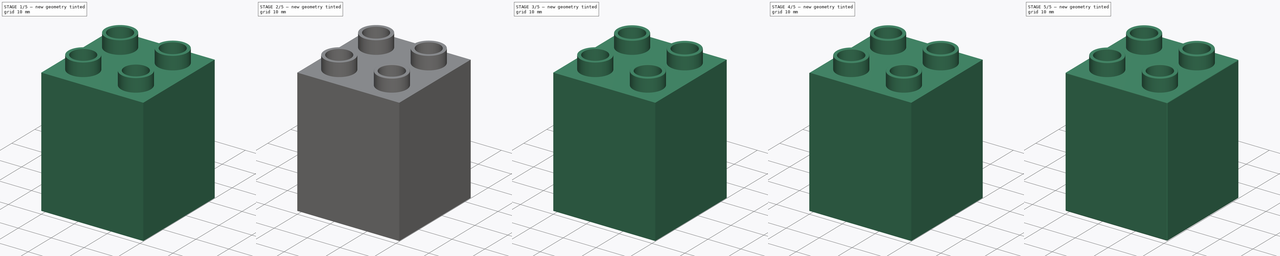
[diagram: build sequence overview — one tinted view per stage of 5, left to right]
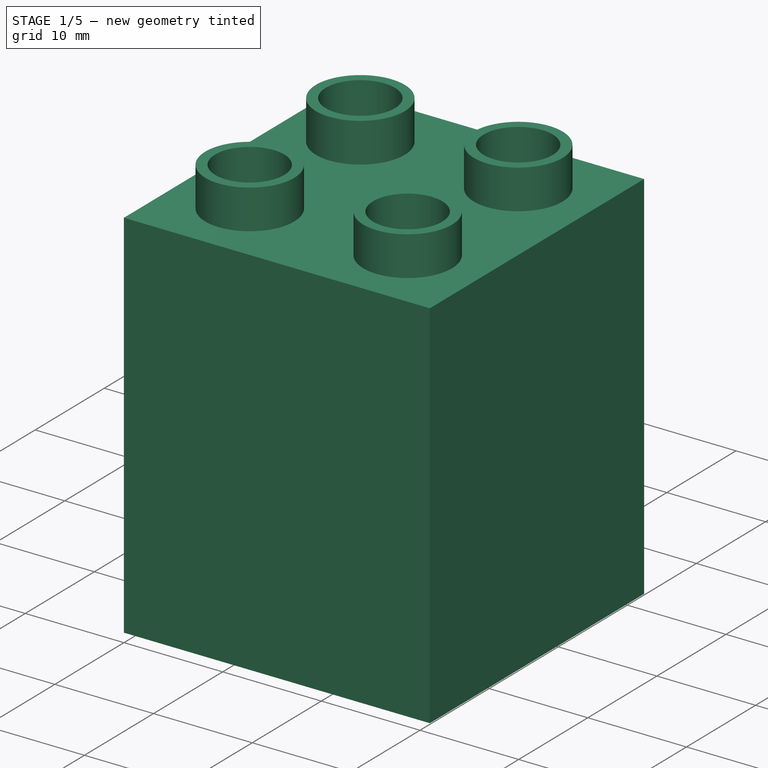
[diagram: stage 1 of 5 — iso view after this stage's code; geometry added in this stage tinted green]
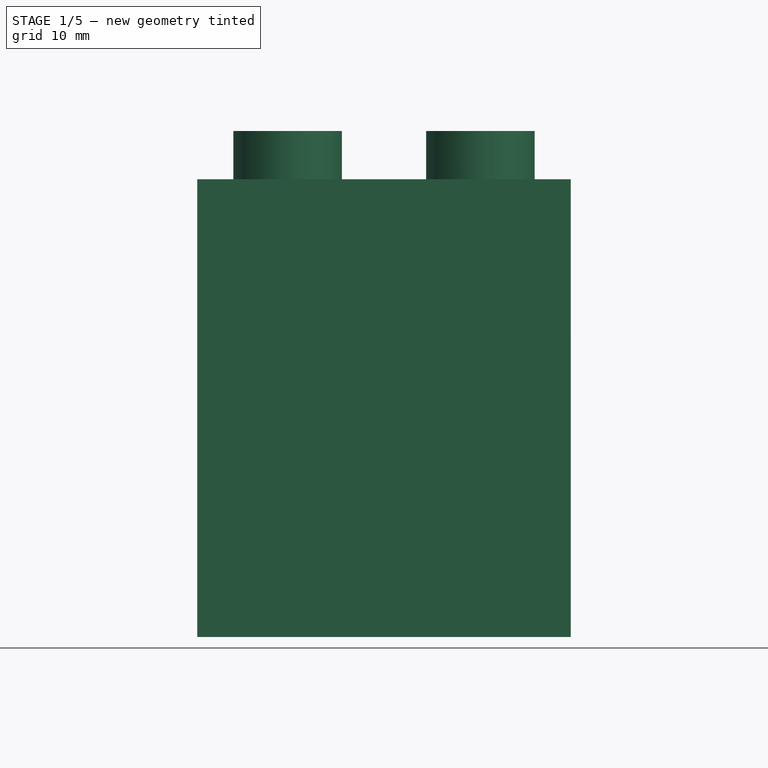
[diagram: stage 1 of 5 — front view after this stage's code; geometry added in this stage tinted green]
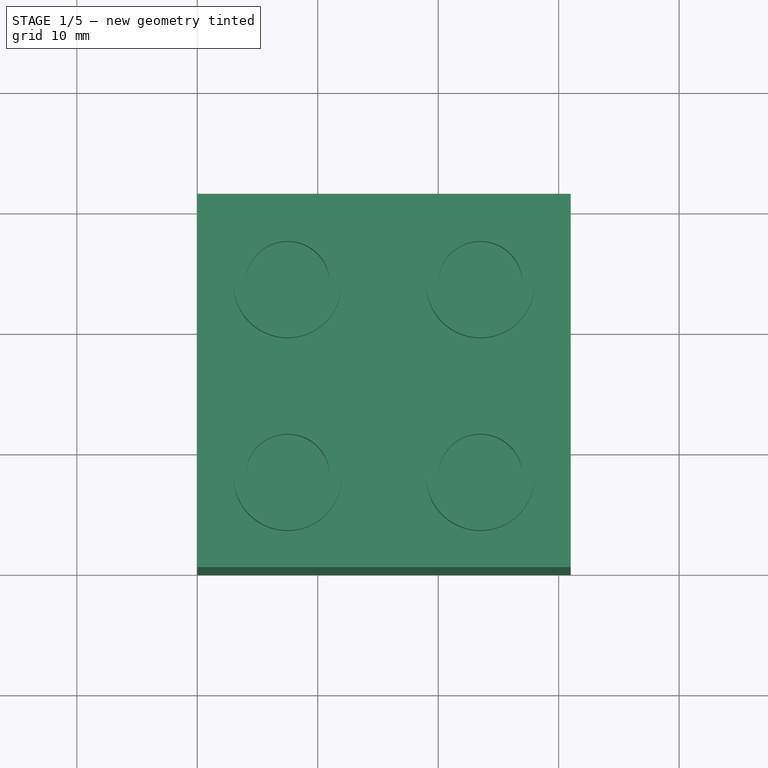
[diagram: stage 1 of 5 — top view after this stage's code; geometry added in this stage tinted green]
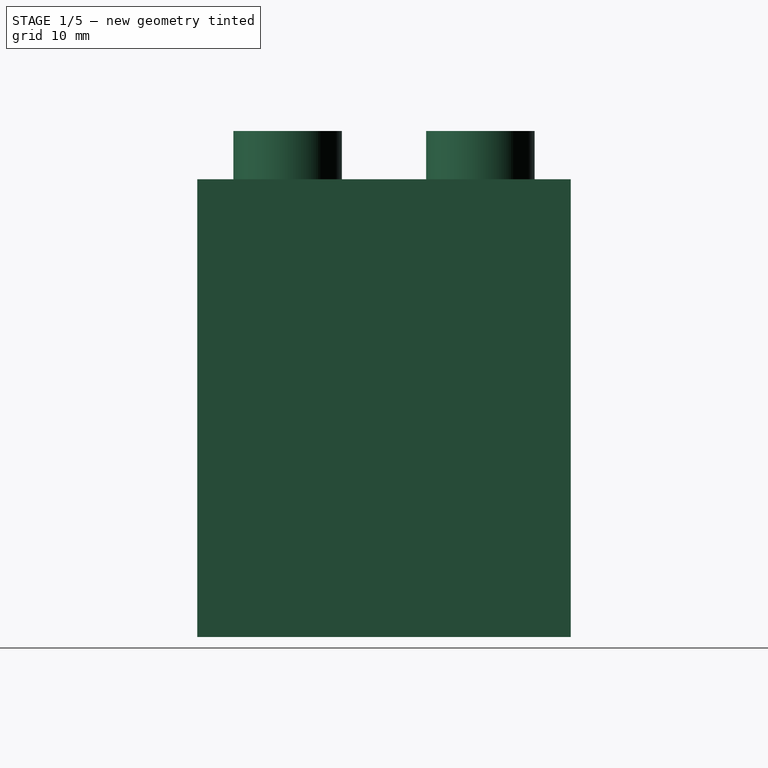
[diagram: stage 1 of 5 — right view after this stage's code; geometry added in this stage tinted green]
FCSTD DOCUMENT  (FreeCAD 0.18.4R)
Label: lego_block
License: All rights reserved
LicenseURL: http://en.wikipedia.org/wiki/All_rights_reserved
objects: PartDesign::Fillet×13, Sketcher::SketchObject×3, PartDesign::Pocket×2, Part::Box×1, PartDesign::FeatureBase×1, PartDesign::Pad×1, PartDesign::Body×1
note: 25 computed .brp shape members not serialized (recipe doc carries the construction recipe); baked Part::Feature solids carry a one-line shape summary decoded from their .brp

FEATURE [Part::Box] Box  label="Cube"
  AttacherType = Attacher::AttachEngine3D
  Height = 38
  Length = 31
  Width = 31
FEATURE [Sketcher::SketchObject] Sketch
  MapMode = 5
  Placement = pos=(0,0,38) rot=(0,0,1;0rad)
  Support = -> [Box]
  sketch-geometry (11):
    g0: Circle CenterX=7.5 CenterY=7.5 CenterZ=0 NormalX=0 NormalY=0 NormalZ=1 AngleXU=0 Radius=4.5
    g1: Circle CenterX=7.5 CenterY=7.5 CenterZ=0 NormalX=0 NormalY=0 NormalZ=1 AngleXU=0 Radius=3.5
    g2: Circle CenterX=7.5 CenterY=23.5 CenterZ=0 NormalX=0 NormalY=0 NormalZ=1 AngleXU=0 Radius=4.5
    g3: Circle CenterX=7.5 CenterY=23.5 CenterZ=0 NormalX=0 NormalY=0 NormalZ=1 AngleXU=0 Radius=3.5
    g4: LineSegment [constr] StartX=7.5 StartY=7.5 StartZ=0 EndX=7.5 EndY=23.5 EndZ=0
    g5: Circle CenterX=23.5 CenterY=7.5 CenterZ=0 NormalX=0 NormalY=0 NormalZ=1 AngleXU=0 Radius=4.5
    g6: Circle CenterX=23.5 CenterY=7.5 CenterZ=0 NormalX=0 NormalY=0 NormalZ=1 AngleXU=0 Radius=3.5
    g7: LineSegment [constr] StartX=7.5 StartY=7.5 StartZ=0 EndX=23.5 EndY=7.5 EndZ=0
    g8: Circle CenterX=23.5 CenterY=23.5 CenterZ=0 NormalX=0 NormalY=0 NormalZ=1 AngleXU=0 Radius=4.5
    g9: Circle CenterX=23.5 CenterY=23.5 CenterZ=0 NormalX=0 NormalY=0 NormalZ=1 AngleXU=0 Radius=3.5
    g10: LineSegment [constr] StartX=23.5 StartY=7.5 StartZ=0 EndX=23.5 EndY=23.5 EndZ=0
  constraints (26):
    c: DistanceX(g-1,g0) = 7.5
    c: DistanceY(g-1,g0) = 7.5
    c: Radius(g0) = 4.5
    c: Coincident(g1,g0)
    c: Radius(g1) = 3.5
    c: Radius(g2) = 4.5
    c: Coincident(g3,g2)
    c: Radius(g3) = 3.5
    c: Coincident(g0,g4)
    c: Coincident(g2,g4)
    c: Distance(g4) = 16
    c: Angle(g4) = 1.5708
    c: Radius(g5) = 4.5
    c: Coincident(g6,g5)
    c: Radius(g6) = 3.5
    c: Coincident(g0,g7)
    c: Coincident(g5,g7)
    c: Equal(g7,g4)
    c: Perpendicular(g7,g4)
    c: Radius(g8) = 4.5
    c: Coincident(g9,g8)
    c: Radius(g9) = 3.5
    c: Coincident(g5,g10)
    c: Coincident(g8,g10)
    c: Equal(g4,g10)
    c: Parallel(g10,g4)
FEATURE [PartDesign::FeatureBase] BaseFeature
  BaseFeature = -> Box
FEATURE [PartDesign::Pad] Pad
  BaseFeature = -> BaseFeature
  Length = 4
  Length2 = 100
  Profile = -> Sketch
  Type = 0
FEATURE [Sketcher::SketchObject] Sketch001
  ExternalGeometry = -> [Pad]
  MapMode = 5
  Placement = pos=(0,0,0) rot=(1,0,0;3.14159rad)
  Support = -> [Pad]
  sketch-geometry (39):
    g0: LineSegment StartX=1 StartY=-1 StartZ=0 EndX=7 EndY=-1 EndZ=0
    g1: LineSegment StartX=30 StartY=-1 StartZ=0 EndX=30 EndY=-7 EndZ=0
    g2: LineSegment StartX=30 StartY=-30 StartZ=0 EndX=24 EndY=-30 EndZ=0
    g3: LineSegment StartX=1 StartY=-30 StartZ=0 EndX=1 EndY=-24 EndZ=0
    g4: LineSegment StartX=7 StartY=-1 StartZ=0 EndX=7 EndY=-2.5 EndZ=0
    g5: LineSegment StartX=7 StartY=-2.5 StartZ=0 EndX=8 EndY=-2.5 EndZ=0
    g6: LineSegment StartX=8 StartY=-2.5 StartZ=0 EndX=8 EndY=-1 EndZ=0
    g7: LineSegment StartX=8 StartY=-1 StartZ=0 EndX=23 EndY=-1 EndZ=0
    g8: LineSegment StartX=23 StartY=-1 StartZ=0 EndX=23 EndY=-2.5 EndZ=0
    g9: LineSegment StartX=24 StartY=-2.5 StartZ=0 EndX=23 EndY=-2.5 EndZ=0
    g10: LineSegment StartX=24 StartY=-2.5 StartZ=0 EndX=24 EndY=-1 EndZ=0
    g11: LineSegment StartX=24 StartY=-1 StartZ=0 EndX=30 EndY=-1 EndZ=0
    g12: LineSegment StartX=1 StartY=-7 StartZ=0 EndX=2.5 EndY=-7 EndZ=0
    g13: LineSegment StartX=2.5 StartY=-7 StartZ=0 EndX=2.5 EndY=-8 EndZ=0
    g14: LineSegment StartX=2.5 StartY=-8 StartZ=0 EndX=1 EndY=-8 EndZ=0
    g15: LineSegment StartX=1 StartY=-7 StartZ=0 EndX=1 EndY=-1 EndZ=0
    g16: LineSegment StartX=1 StartY=-24 StartZ=0 EndX=2.5 EndY=-24 EndZ=0
    g17: LineSegment StartX=2.5 StartY=-24 StartZ=0 EndX=2.5 EndY=-23 EndZ=0
    g18: LineSegment StartX=2.5 StartY=-23 StartZ=0 EndX=1 EndY=-23 EndZ=0
    g19: LineSegment StartX=30 StartY=-24 StartZ=0 EndX=28.5 EndY=-24 EndZ=0
    g20: LineSegment StartX=28.5 StartY=-24 StartZ=0 EndX=28.5 EndY=-23 EndZ=0
    g21: LineSegment StartX=28.5 StartY=-23 StartZ=0 EndX=30 EndY=-23 EndZ=0
    g22: LineSegment StartX=28.5 StartY=-8 StartZ=0 EndX=30 EndY=-8 EndZ=0
    g23: LineSegment StartX=28.5 StartY=-7 StartZ=0 EndX=28.5 EndY=-8 EndZ=0
    g24: LineSegment StartX=30 StartY=-7 StartZ=0 EndX=28.5 EndY=-7 EndZ=0
    g25: LineSegment StartX=7 StartY=-30 StartZ=0 EndX=7 EndY=-28.5 EndZ=0
    g26: LineSegment StartX=8 StartY=-28.5 StartZ=0 EndX=8 EndY=-30 EndZ=0
    g27: LineSegment StartX=7 StartY=-28.5 StartZ=0 EndX=8 EndY=-28.5 EndZ=0
    g28: LineSegment StartX=23 StartY=-30 StartZ=0 EndX=23 EndY=-28.5 EndZ=0
    g29: LineSegment StartX=24 StartY=-28.5 StartZ=0 EndX=24 EndY=-30 EndZ=0
    g30: LineSegment StartX=24 StartY=-28.5 StartZ=0 EndX=23 EndY=-28.5 EndZ=0
    g31: LineSegment StartX=1 StartY=-23 StartZ=0 EndX=1 EndY=-8 EndZ=0
    g32: LineSegment StartX=7 StartY=-30 StartZ=0 EndX=1 EndY=-30 EndZ=0
    g33: LineSegment StartX=23 StartY=-30 StartZ=0 EndX=8 EndY=-30 EndZ=0
    g34: LineSegment StartX=30 StartY=-24 StartZ=0 EndX=30 EndY=-30 EndZ=0
    g35: LineSegment StartX=30 StartY=-8 StartZ=0 EndX=30 EndY=-23 EndZ=0
    g36: LineSegment [constr] StartX=1 StartY=-15.5 StartZ=0 EndX=30 EndY=-15.5 EndZ=0
    g37: GeomPoint X=15.5 Y=-15.5 Z=0
    g38: Circle CenterX=15.5 CenterY=-15.5 CenterZ=0 NormalX=0 NormalY=0 NormalZ=1 AngleXU=0 Radius=6.5
  constraints (108):
    c: Coincident(g11,g1)
    c: Coincident(g34,g2)
    c: Coincident(g32,g3)
    c: Coincident(g15,g0)
    c: Horizontal(g0)
    c: Horizontal(g2)
    c: Vertical(g1)
    c: Vertical(g3)
    c: DistanceY(g0,g-1) = 1
    c: DistanceX(g-1,g0) = 1
    c: DistanceX(g11,g-3) = 1
    c: DistanceY(g-4,g32) = 1
    c: Coincident(g4,g5)
    c: Coincident(g5,g6)
    c: Coincident(g0,g4)
    c: Coincident(g7,g6)
    c: Tangent(g0,g7)
    c: DistanceY(g4,g0) = 1.5
    c: DistanceY(g5,g6) = 1.5
    c: DistanceX(g0,g6) = 1
    c: DistanceX(g4,g5) = 1
    c: Angle(g0,g4) = 1.5708
    c: DistanceX(g0,g0) = 6
    c: Coincident(g8,g9)
    c: Coincident(g10,g9)
    c: Coincident(g7,g8)
    c: Coincident(g11,g10)
    c: Tangent(g7,g11)
    c: DistanceY(g8,g7) = 1.5
    c: DistanceY(g9,g10) = 1.5
    c: DistanceX(g8,g9) = 1
    c: DistanceX(g7,g10) = 1
    c: Angle(g7,g8) = 1.5708
    c: DistanceX(g10,g1) = 6
    c: Coincident(g12,g13)
    c: Coincident(g13,g14)
    c: Tangent(g3,g15)
    c: Coincident(g12,g15)
    c: Coincident(g14,g31)
    c: DistanceY(g31,g12) = 1
    c: DistanceY(g13,g12) = 1
    c: DistanceX(g31,g13) = 1.5
    c: DistanceX(g12,g12) = 1.5
    c: Angle(g3,g14) = 1.5708
    c: DistanceY(g12,g0) = 6
    c: Coincident(g16,g17)
    c: Coincident(g17,g18)
    c: Coincident(g19,g20)
    c: Coincident(g20,g21)
    c: Coincident(g24,g23)
    c: Coincident(g23,g22)
    c: Coincident(g25,g27)
    c: Coincident(g27,g26)
    c: Coincident(g28,g30)
    c: Coincident(g29,g30)
    c: Coincident(g3,g16)
    c: Coincident(g31,g18)
    c: Tangent(g3,g31)
    c: DistanceY(g3,g18) = 1
    c: DistanceY(g16,g17) = 1
    c: DistanceX(g18,g17) = 1.5
    c: DistanceX(g3,g16) = 1.5
    c: Angle(g3,g16) = 1.5708
    c: DistanceY(g32,g3) = 6
    c: Coincident(g33,g26)
    c: Coincident(g32,g25)
    c: Tangent(g2,g32)
    c: DistanceX(g25,g33) = 1
    c: DistanceX(g25,g26) = 1
    c: DistanceY(g25,g25) = 1.5
    c: DistanceY(g33,g26) = 1.5
    c: Angle(g2,g26) = 1.5708
    c: DistanceX(g3,g25) = 6
    c: Coincident(g2,g29)
    c: Coincident(g33,g28)
    c: Tangent(g2,g33)
    c: DistanceX(g28,g2) = 1
    c: DistanceX(g28,g29) = 1
    c: DistanceY(g28,g28) = 1.5
    c: DistanceY(g2,g29) = 1.5
    c: Angle(g2,g29) = 1.5708
    c: DistanceX(g2,g34) = 6
    c: Coincident(g35,g21)
    c: Coincident(g34,g19)
    c: Tangent(g1,g34)
    c: DistanceY(g19,g35) = 1
    c: DistanceY(g19,g20) = 1
    c: DistanceX(g20,g35) = 1.5
    c: DistanceX(g19,g19) = 1.5
    c: Angle(g1,g21) = 1.5708
    c: DistanceY(g2,g19) = 6
    c: Coincident(g1,g24)
    c: Coincident(g35,g22)
    c: Tangent(g1,g35)
    c: DistanceY(g22,g1) = 1
    c: DistanceY(g22,g23) = 1
    c: DistanceX(g22,g22) = 1.5
    c: DistanceX(g23,g1) = 1.5
    c: Angle(g22,g35) = 1.5708
    c: DistanceY(g1,g1) = 6
    c: PointOnObject(g36,g31)
    c: PointOnObject(g36,g35)
    c: DistanceY(g36,g-1) = 15.5
    c: DistanceY(g36,g-3) = 15.5
    c: PointOnObject(g37,g36)
    c: DistanceX(g-1,g37) = 15.5
    c: Coincident(g38,g37)
    c: Radius(g38) = 6.5
FEATURE [PartDesign::Pocket] Pocket
  BaseFeature = -> Pad
  Length = 35
  Length2 = 100
  Profile = -> Sketch001
  Type = 0
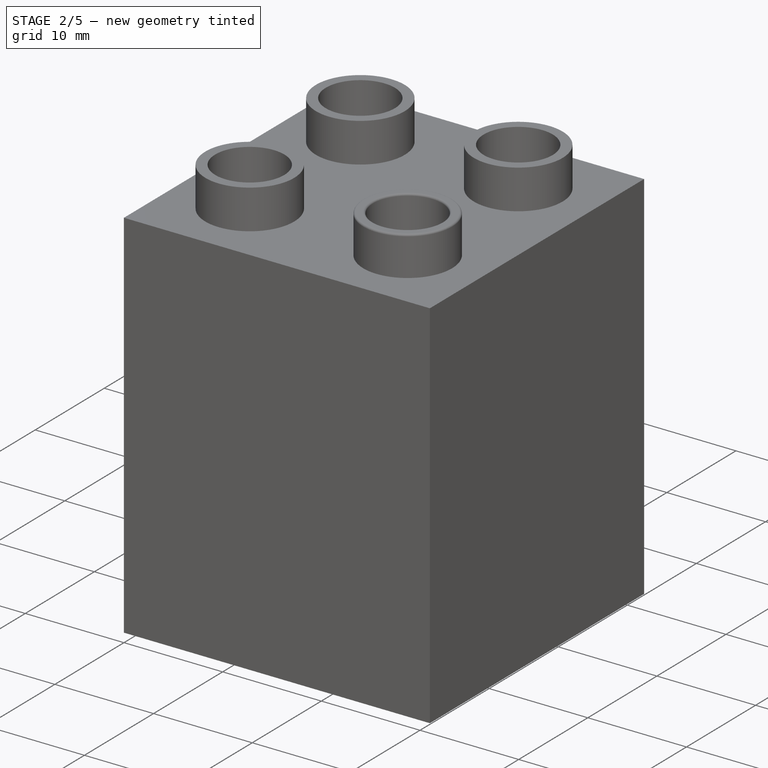
[diagram: stage 2 of 5 — iso view after this stage's code; geometry added in this stage tinted green]
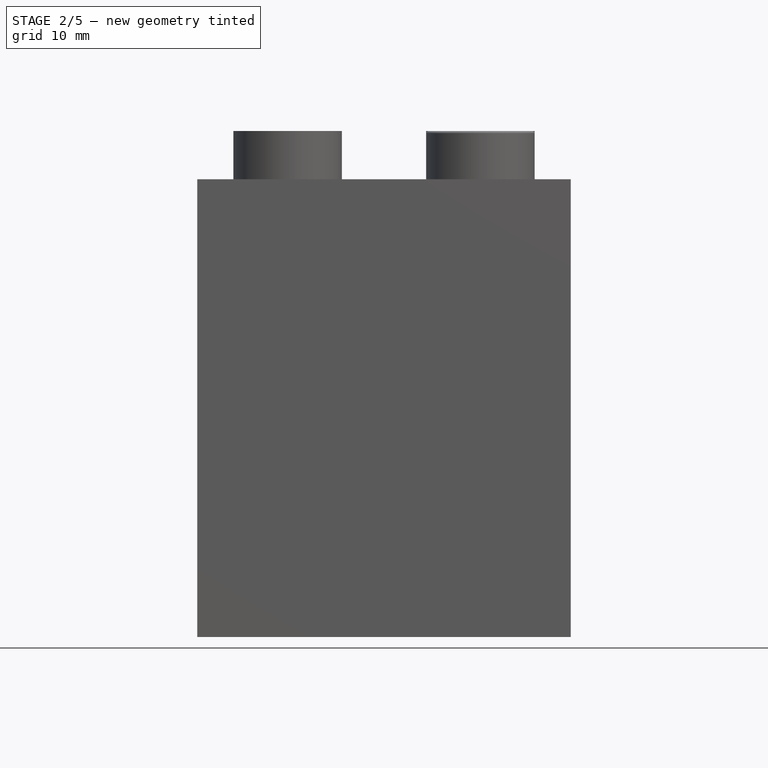
[diagram: stage 2 of 5 — front view after this stage's code; geometry added in this stage tinted green]
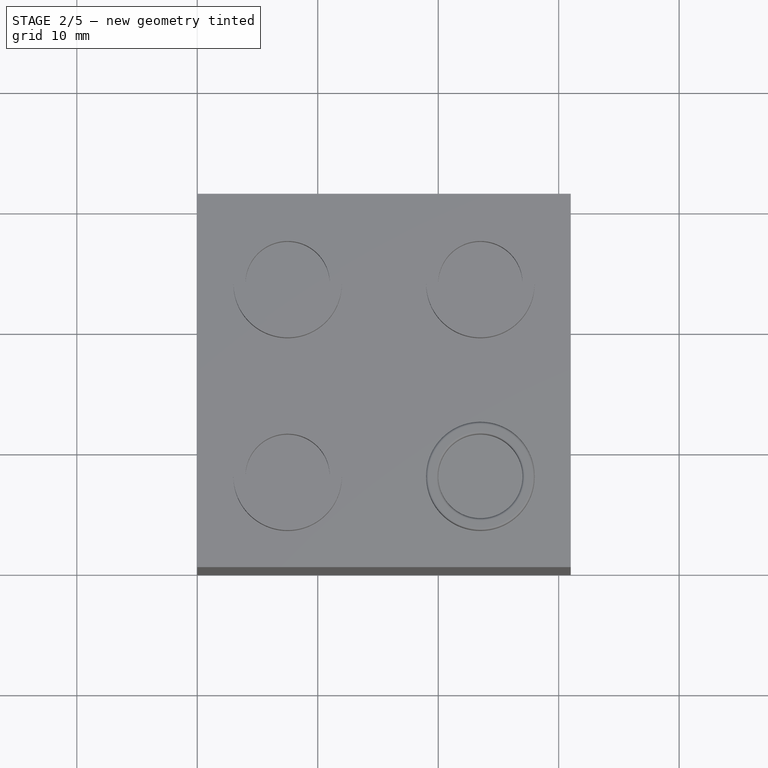
[diagram: stage 2 of 5 — top view after this stage's code; geometry added in this stage tinted green]
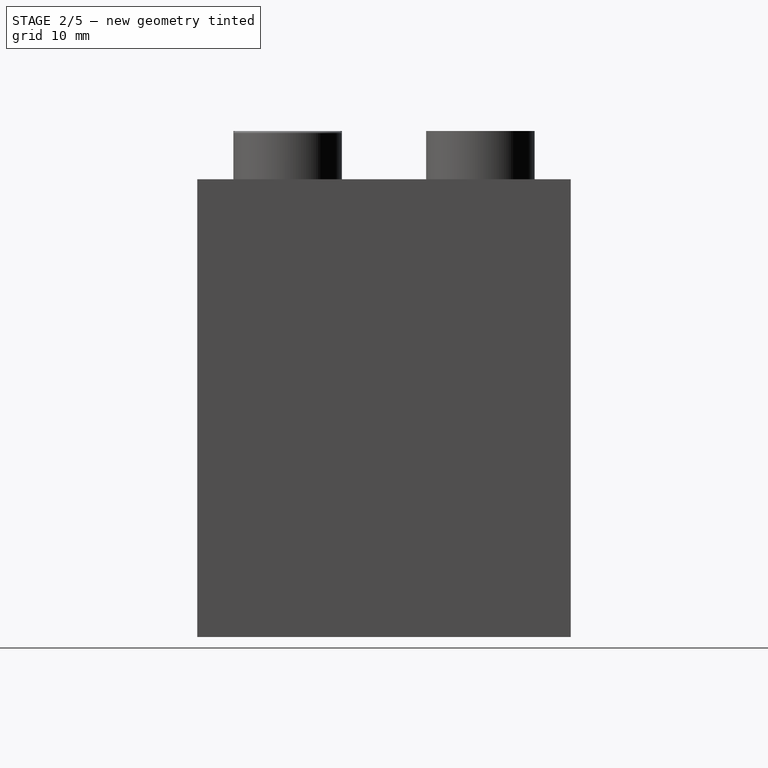
[diagram: stage 2 of 5 — right view after this stage's code; geometry added in this stage tinted green]
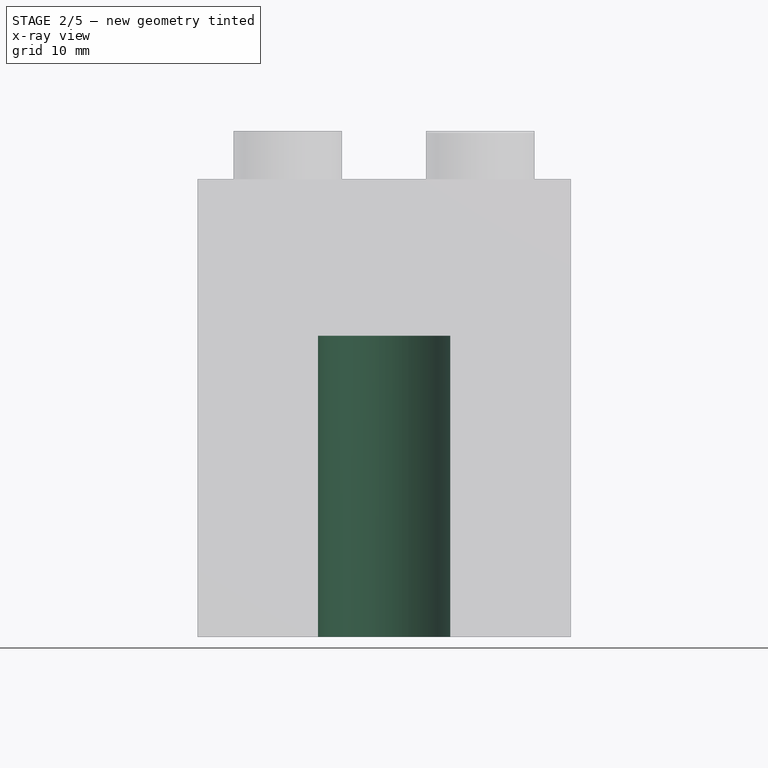
[diagram: stage 2 of 5 — x-ray composite at the front view; earlier geometry ghosted, this stage's added geometry solid]
FEATURE [Sketcher::SketchObject] Sketch002
  MapMode = 5
  Placement = pos=(0,0,0) rot=(1,0,0;3.14159rad)
  Support = -> [Pocket]
  sketch-geometry (2):
    g0: GeomPoint X=15.5 Y=-15.5 Z=0
    g1: Circle CenterX=15.5 CenterY=-15.5 CenterZ=0 NormalX=0 NormalY=0 NormalZ=1 AngleXU=0 Radius=5.5
  constraints (4):
    c: DistanceX(g-1,g0) = 15.5
    c: DistanceY(g0,g-1) = 15.5
    c: Coincident(g0,g1)
    c: Radius(g1) = 5.5
FEATURE [PartDesign::Pocket] Pocket001
  BaseFeature = -> Pocket
  Length = 25
  Length2 = 100
  Profile = -> Sketch002
  Type = 0
FEATURE [PartDesign::Fillet] Fillet
  Base = -> Pocket001 [Edge58]
  BaseFeature = -> Pocket001
  Radius = 0.2
FEATURE [PartDesign::Fillet] Fillet001
  Base = -> Fillet [Edge13]
  BaseFeature = -> Fillet
  Radius = 0.2
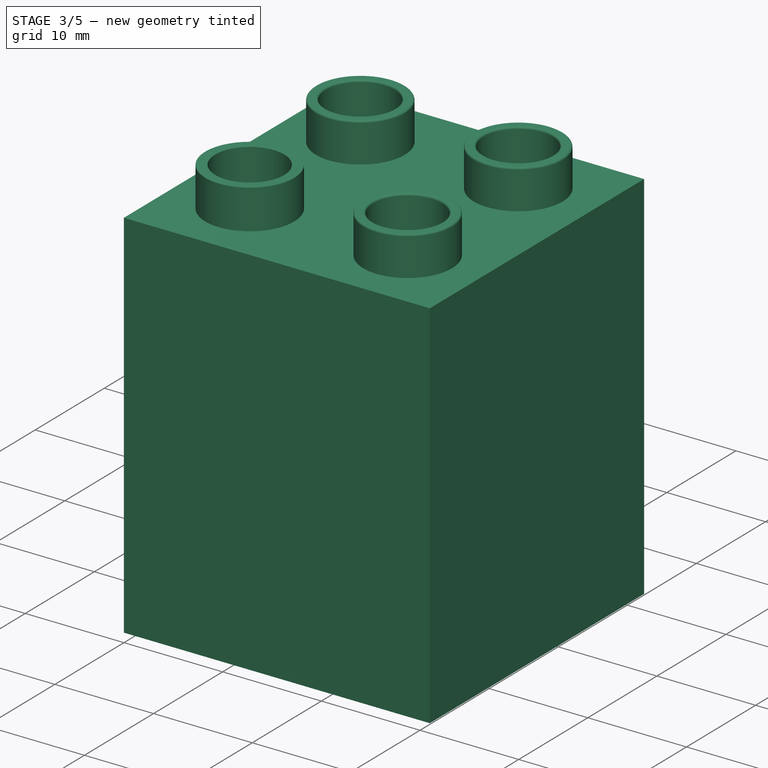
[diagram: stage 3 of 5 — iso view after this stage's code; geometry added in this stage tinted green]
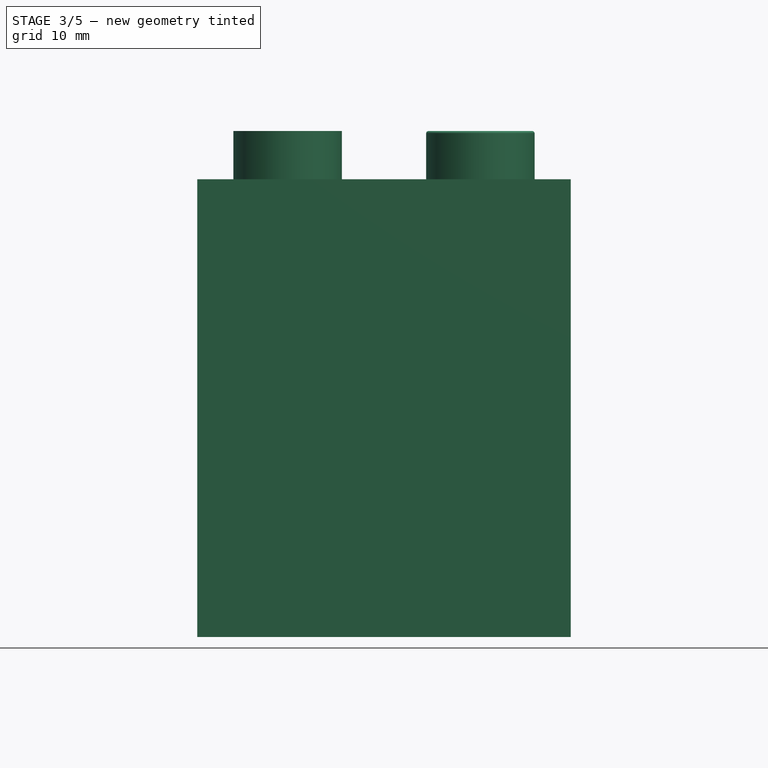
[diagram: stage 3 of 5 — front view after this stage's code; geometry added in this stage tinted green]
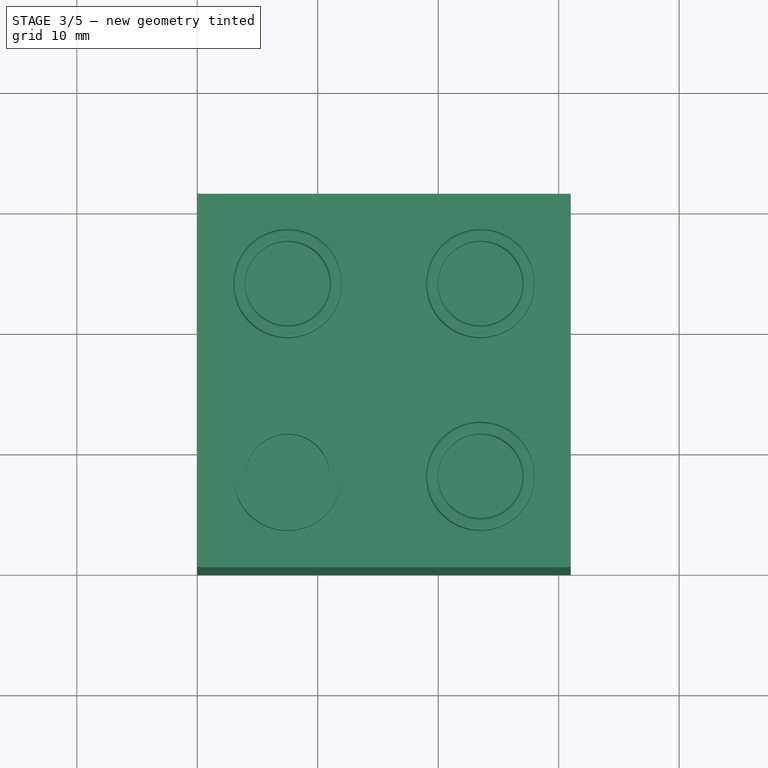
[diagram: stage 3 of 5 — top view after this stage's code; geometry added in this stage tinted green]
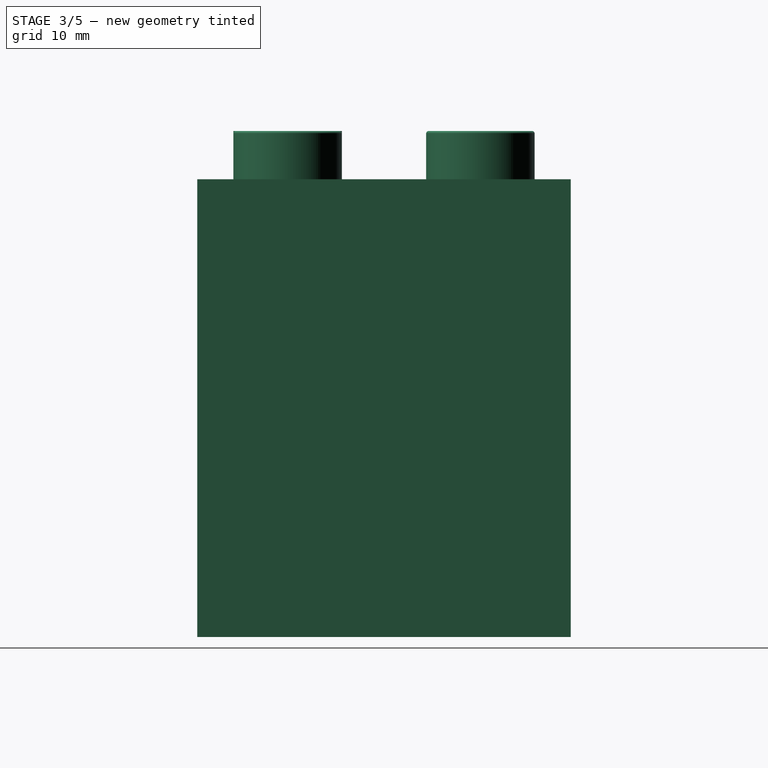
[diagram: stage 3 of 5 — right view after this stage's code; geometry added in this stage tinted green]
FEATURE [PartDesign::Fillet] Fillet002
  Base = -> Fillet001 [Edge29]
  BaseFeature = -> Fillet001
  Radius = 0.2
FEATURE [PartDesign::Fillet] Fillet003
  Base = -> Fillet002 [Edge13]
  BaseFeature = -> Fillet002
  Radius = 0.2
FEATURE [PartDesign::Fillet] Fillet004
  Base = -> Fillet003 [Edge27]
  BaseFeature = -> Fillet003
  Radius = 0.2
FEATURE [PartDesign::Fillet] Fillet005
  Base = -> Fillet004 [Edge13]
  BaseFeature = -> Fillet004
  Radius = 0.2
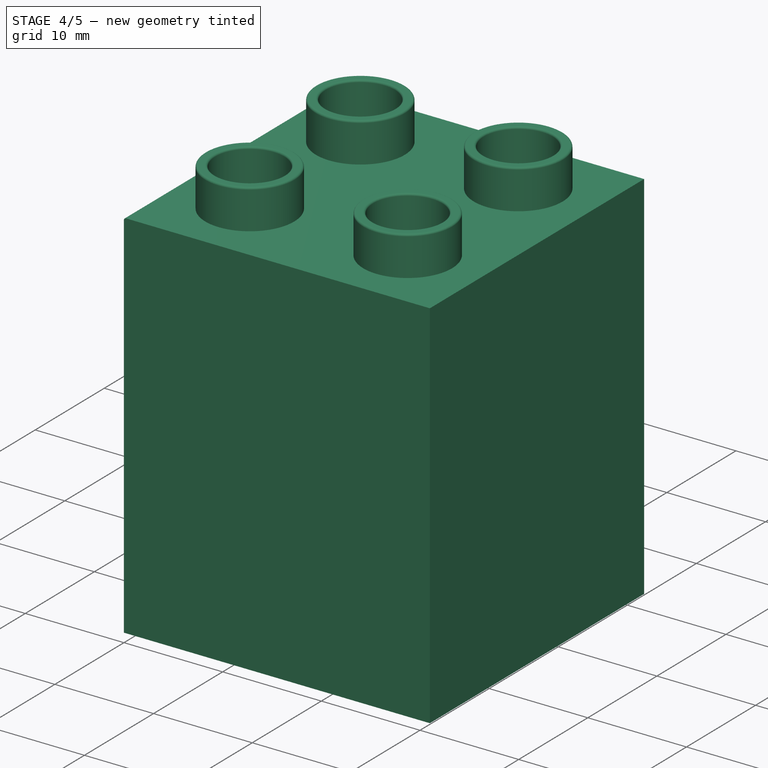
[diagram: stage 4 of 5 — iso view after this stage's code; geometry added in this stage tinted green]
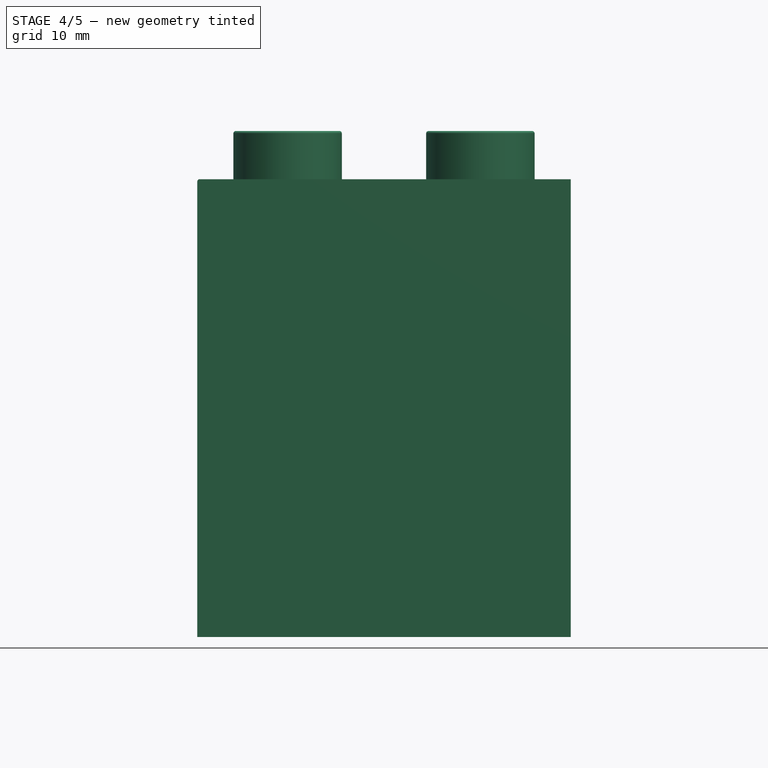
[diagram: stage 4 of 5 — front view after this stage's code; geometry added in this stage tinted green]
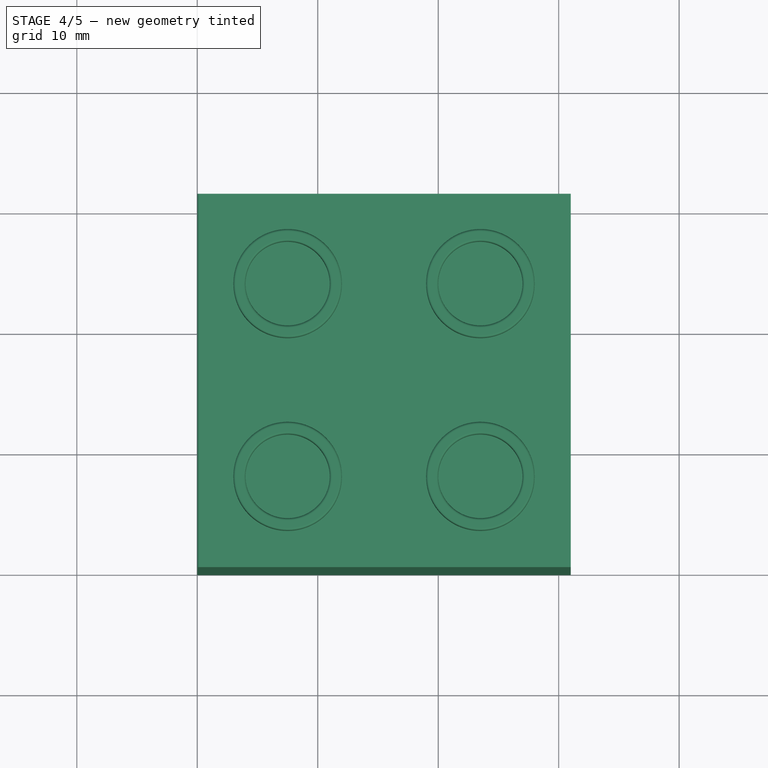
[diagram: stage 4 of 5 — top view after this stage's code; geometry added in this stage tinted green]
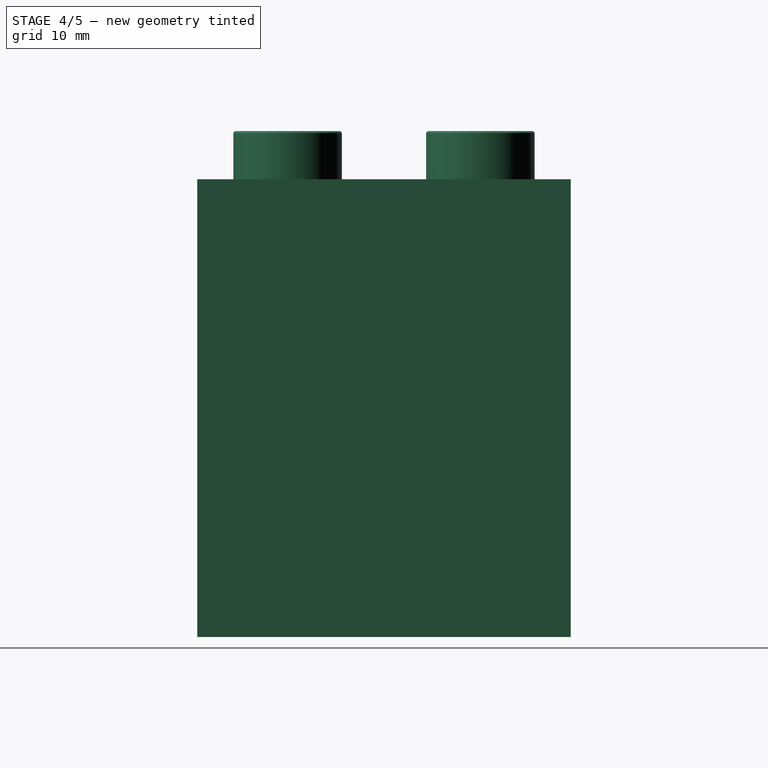
[diagram: stage 4 of 5 — right view after this stage's code; geometry added in this stage tinted green]
FEATURE [PartDesign::Fillet] Fillet006
  Base = -> Fillet005 [Edge72]
  BaseFeature = -> Fillet005
  Radius = 0.2
FEATURE [PartDesign::Fillet] Fillet007
  Base = -> Fillet006 [Edge2]
  BaseFeature = -> Fillet006
  Radius = 0.2
FEATURE [PartDesign::Fillet] Fillet008
  Base = -> Fillet007 [Edge11]
  BaseFeature = -> Fillet007
  Radius = 0.2
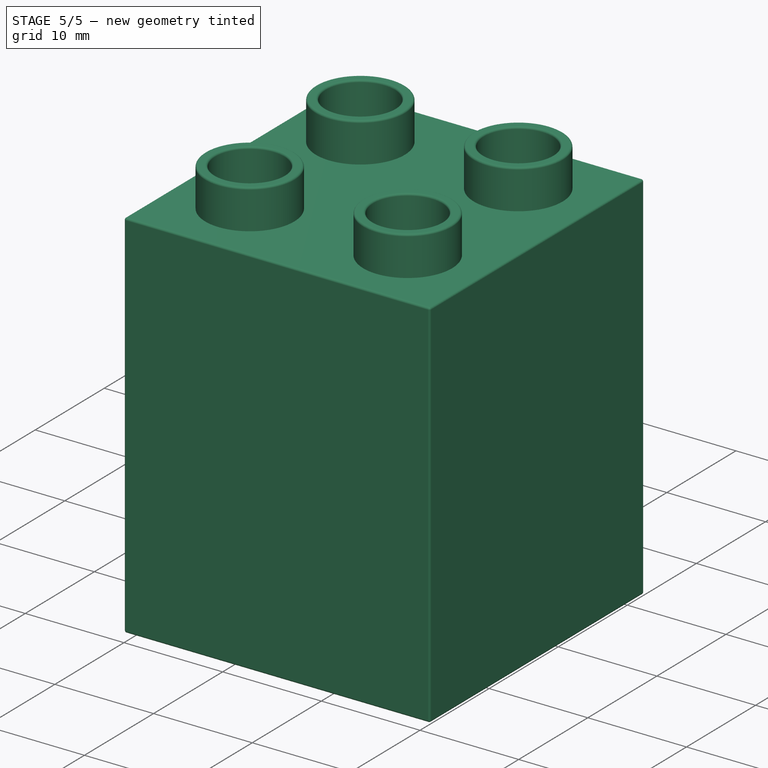
[diagram: stage 5 of 5 — iso view after this stage's code; geometry added in this stage tinted green]
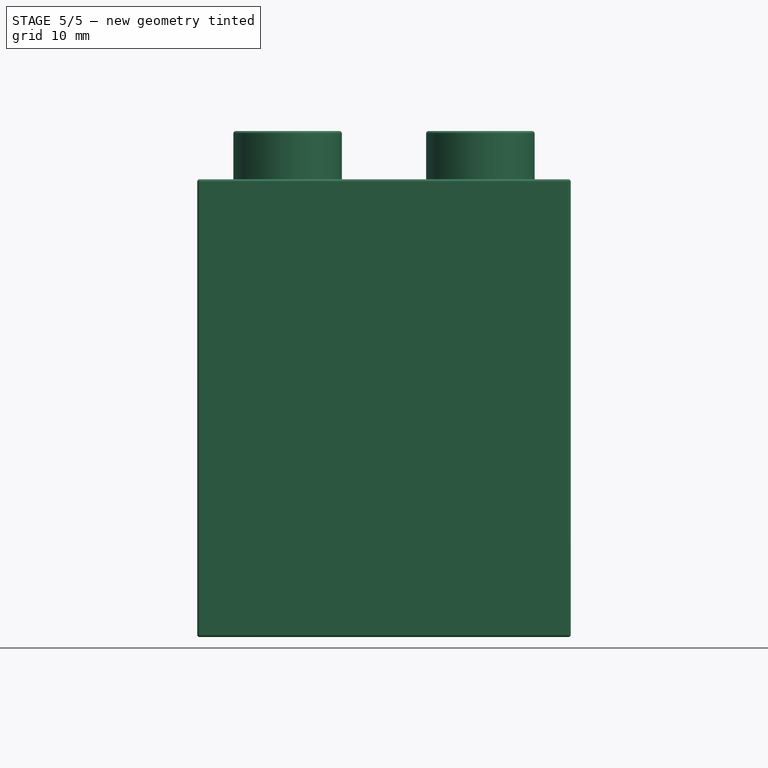
[diagram: stage 5 of 5 — front view after this stage's code; geometry added in this stage tinted green]
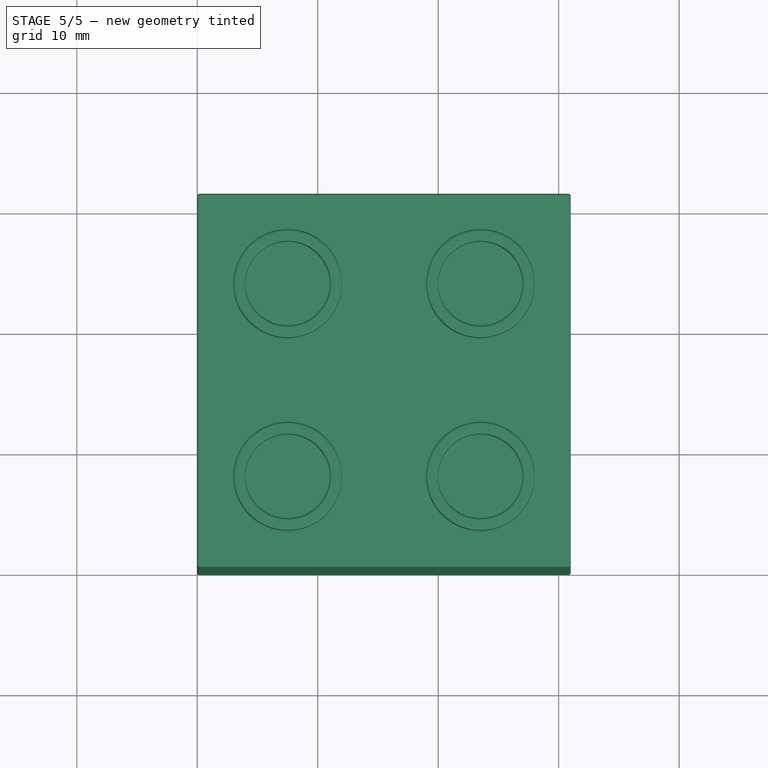
[diagram: stage 5 of 5 — top view after this stage's code; geometry added in this stage tinted green]
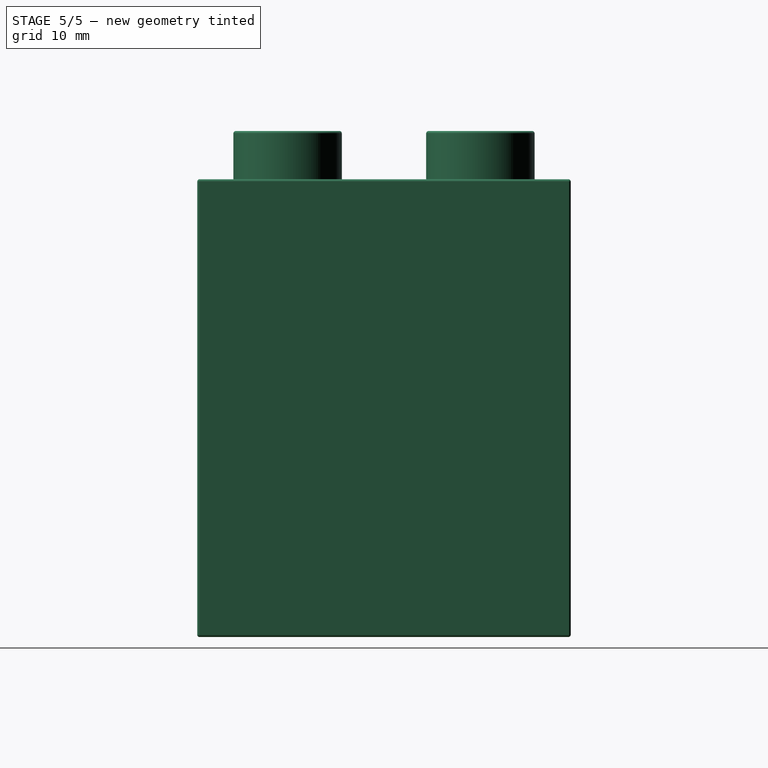
[diagram: stage 5 of 5 — right view after this stage's code; geometry added in this stage tinted green]
FEATURE [PartDesign::Fillet] Fillet009
  Base = -> Fillet008 [Edge4]
  BaseFeature = -> Fillet008
  Radius = 0.2
FEATURE [PartDesign::Fillet] Fillet010
  Base = -> Fillet009 [Edge4]
  BaseFeature = -> Fillet009
  Radius = 0.2
FEATURE [PartDesign::Fillet] Fillet011
  Base = -> Fillet010 [Edge4]
  BaseFeature = -> Fillet010
  Radius = 0.2
FEATURE [PartDesign::Fillet] Fillet012
  Base = -> Fillet011 [Edge38,Edge48,Edge43,Edge29]
  BaseFeature = -> Fillet011
  Radius = 0.2
FEATURE [PartDesign::Body] Body
  BaseFeature = -> Box
  Group = -> [BaseFeature,Pad,Sketch001,Pocket,Sketch002,Pocket001,Fillet,Fillet001,Fillet002,Fillet003,Fillet004,Fillet005,Fillet006,Fillet007,Fillet008,Fillet009,Fillet010,Fillet011,Fillet012]
  Origin = -> Origin
  Tip = -> Fillet012
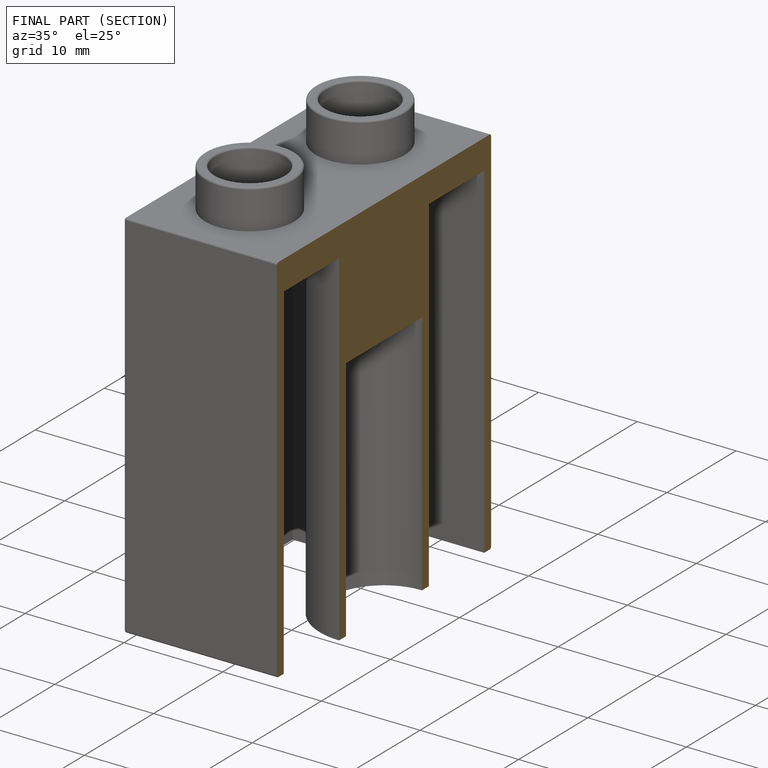
[diagram: finished part — half-section view (interior)]
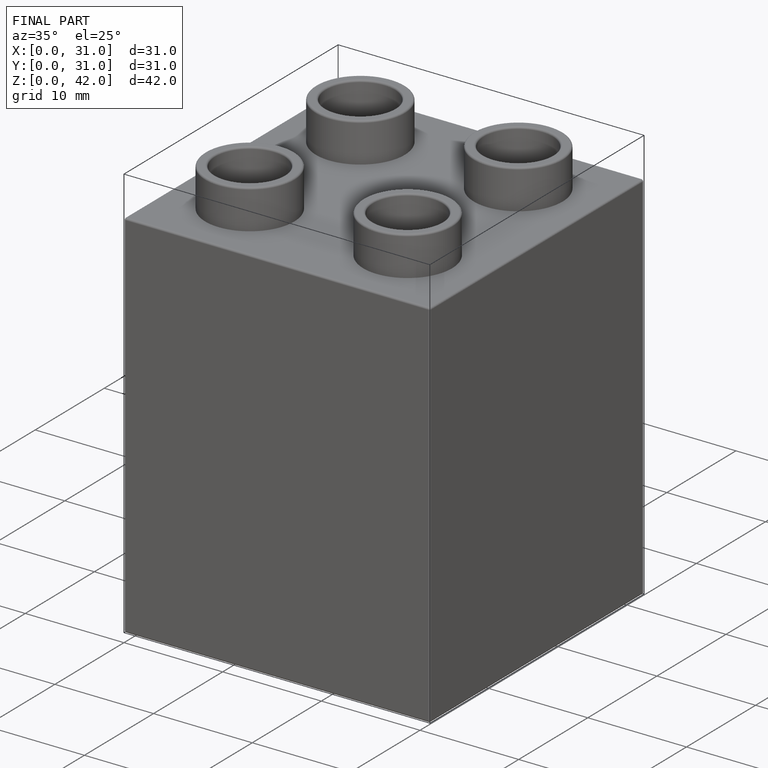
[diagram: finished part — iso view with bounding-box wireframe]
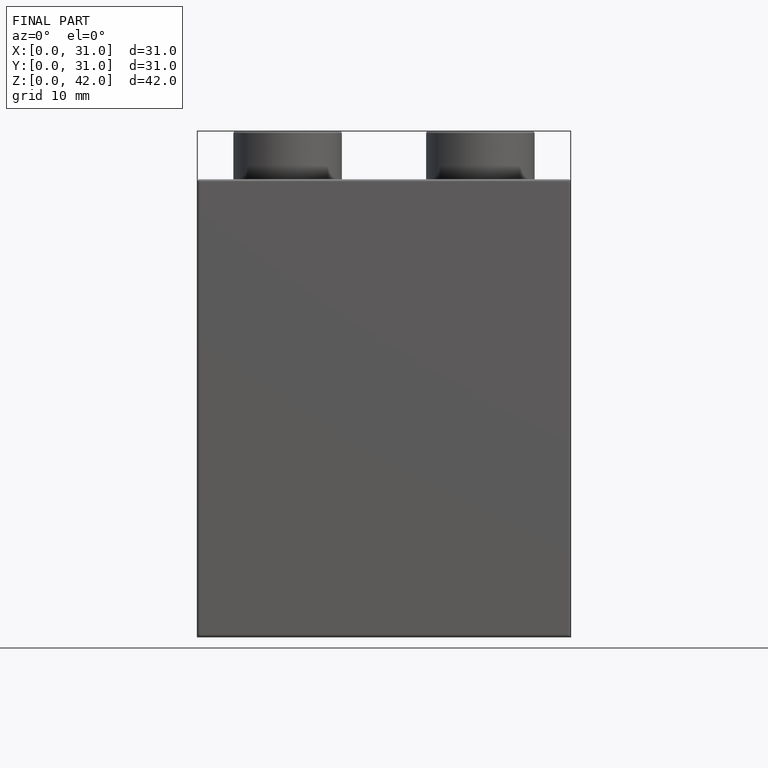
[diagram: finished part — front view with bounding-box wireframe]
